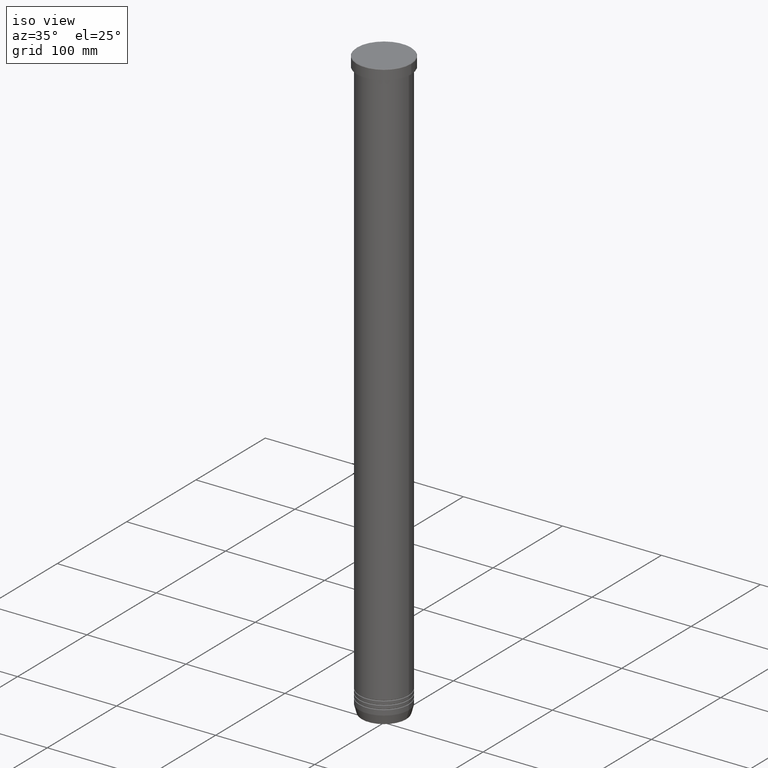
[diagram: clean part render]
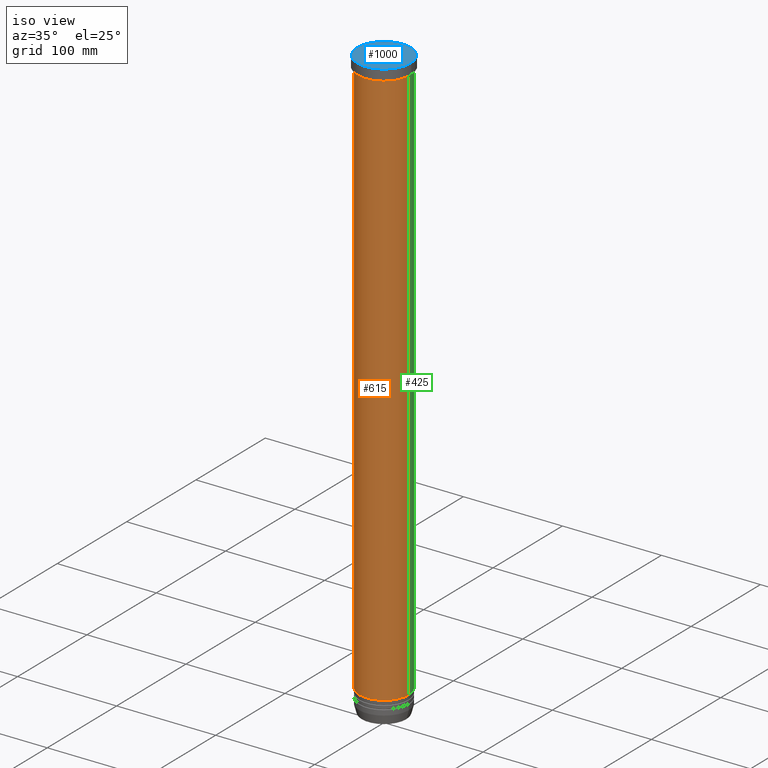
[diagram: same view with three faces highlighted in distinct colors, each labeled with its STEP entity id]
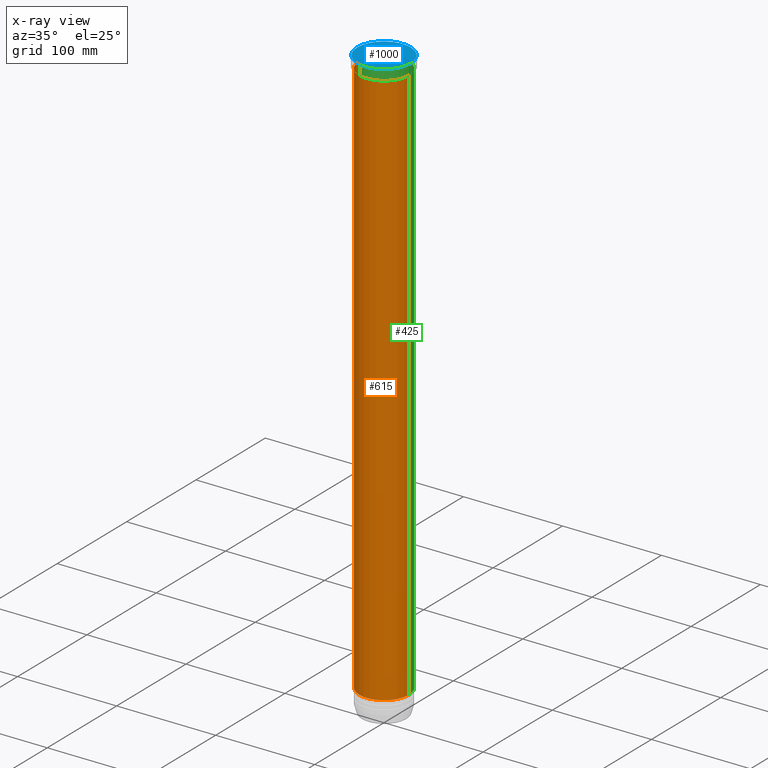
[diagram: x-ray of the same camera — body ghosted, the three highlighted faces saturated]
A machine part, iso view with three faces highlighted in distinct colors.
The next image is the same camera in x-ray (body ghosted, the three faces saturated) — at least one of them is partly hidden behind the body in this view.
Their STEP definitions:

[orange] entity #615 — the highlighted cylindrical surface (edge-blend (fillet) strip) has radius 25 mm, axis along (-0, -0, 1).
#9 = CARTESIAN_POINT ( 'NONE',  ( -25.00000000000000355, 3.061616997868383437E-15, -11.99999999999999822 ) ) ;
#17 = ORIENTED_EDGE ( 'NONE', *, *, #392, .F. ) ;
#19 = CARTESIAN_POINT ( 'NONE',  ( -24.99999999999999289, 3.061616997868382648E-15, -577.0000000000000000 ) ) ;
#45 = ORIENTED_EDGE ( 'NONE', *, *, #410, .F. ) ;
#50 = DIRECTION ( 'NONE',  ( 1.000000000000000000, 0.000000000000000000, 0.000000000000000000 ) ) ;
#89 = FACE_OUTER_BOUND ( 'NONE', #825, .T. ) ;
#105 = VERTEX_POINT ( 'NONE', #9 ) ;
#293 = CARTESIAN_POINT ( 'NONE',  ( 25.00000000000000000, 0.000000000000000000, -11.99999999999999822 ) ) ;
#300 = VERTEX_POINT ( 'NONE', #293 ) ;
#318 = CIRCLE ( 'NONE', #339, 24.99999999999999289 ) ;
#327 = ORIENTED_EDGE ( 'NONE', *, *, #808, .T. ) ;
#339 = AXIS2_PLACEMENT_3D ( 'NONE', #409, #820, #733 ) ;
#373 = CARTESIAN_POINT ( 'NONE',  ( 24.99999999999999645, 0.000000000000000000, 0.000000000000000000 ) ) ;
#392 = EDGE_CURVE ( 'NONE', #105, #300, #520, .T. ) ;
#398 = AXIS2_PLACEMENT_3D ( 'NONE', #411, #415, #741 ) ;
#409 = CARTESIAN_POINT ( 'NONE',  ( 0.000000000000000000, 0.000000000000000000, -577.0000000000000000 ) ) ;
#410 = EDGE_CURVE ( 'NONE', #518, #105, #626, .T. ) ;
#411 = CARTESIAN_POINT ( 'NONE',  ( 0.000000000000000000, 0.000000000000000000, 0.000000000000000000 ) ) ;
#413 = VECTOR ( 'NONE', #629, 1000.000000000000000 ) ;
#415 = DIRECTION ( 'NONE',  ( -0.000000000000000000, -0.000000000000000000, 1.000000000000000000 ) ) ;
#434 = VECTOR ( 'NONE', #1059, 1000.000000000000000 ) ;
#450 = ORIENTED_EDGE ( 'NONE', *, *, #1036, .T. ) ;
#518 = VERTEX_POINT ( 'NONE', #19 ) ;
#520 = CIRCLE ( 'NONE', #651, 25.00000000000000000 ) ;
#567 = CARTESIAN_POINT ( 'NONE',  ( -24.99999999999999645, 3.061616997868382648E-15, 0.000000000000000000 ) ) ;
#615 = ADVANCED_FACE ( 'NONE', ( #89 ), #904, .T. ) ;
#626 = LINE ( 'NONE', #567, #413 ) ;
#628 = LINE ( 'NONE', #373, #434 ) ;
#629 = DIRECTION ( 'NONE',  ( -0.000000000000000000, -0.000000000000000000, 1.000000000000000000 ) ) ;
#651 = AXIS2_PLACEMENT_3D ( 'NONE', #812, #1045, #50 ) ;
#733 = DIRECTION ( 'NONE',  ( 1.000000000000000000, 0.000000000000000000, 0.000000000000000000 ) ) ;
#741 = DIRECTION ( 'NONE',  ( 1.000000000000000000, 0.000000000000000000, 0.000000000000000000 ) ) ;
#743 = VERTEX_POINT ( 'NONE', #775 ) ;
#775 = CARTESIAN_POINT ( 'NONE',  ( 24.99999999999999289, 0.000000000000000000, -577.0000000000000000 ) ) ;
#808 = EDGE_CURVE ( 'NONE', #743, #300, #628, .T. ) ;
#812 = CARTESIAN_POINT ( 'NONE',  ( 0.000000000000000000, 0.000000000000000000, -11.99999999999999822 ) ) ;
#820 = DIRECTION ( 'NONE',  ( -0.000000000000000000, -0.000000000000000000, 1.000000000000000000 ) ) ;
#825 = EDGE_LOOP ( 'NONE', ( #45, #450, #327, #17 ) ) ;
#904 = CYLINDRICAL_SURFACE ( 'NONE', #398, 24.99999999999999645 ) ;
#1036 = EDGE_CURVE ( 'NONE', #518, #743, #318, .T. ) ;
#1045 = DIRECTION ( 'NONE',  ( -0.000000000000000000, -0.000000000000000000, 1.000000000000000000 ) ) ;
#1059 = DIRECTION ( 'NONE',  ( -0.000000000000000000, -0.000000000000000000, 1.000000000000000000 ) ) ;

[blue] entity #1000 — the highlighted planar face has unit normal (0, -0, 1).
#10 = DIRECTION ( 'NONE',  ( 1.000000000000000000, 0.000000000000000000, 0.000000000000000000 ) ) ;
#107 = DIRECTION ( 'NONE',  ( 1.000000000000000000, 0.000000000000000000, 0.000000000000000000 ) ) ;
#163 = PLANE ( 'NONE',  #399 ) ;
#180 = CIRCLE ( 'NONE', #620, 27.00000000000000711 ) ;
#246 = FACE_OUTER_BOUND ( 'NONE', #1030, .T. ) ;
#285 = DIRECTION ( 'NONE',  ( -0.000000000000000000, -0.000000000000000000, 1.000000000000000000 ) ) ;
#332 = DIRECTION ( 'NONE',  ( -0.000000000000000000, -0.000000000000000000, 1.000000000000000000 ) ) ;
#334 = VERTEX_POINT ( 'NONE', #604 ) ;
#338 = DIRECTION ( 'NONE',  ( 1.000000000000000000, 0.000000000000000000, 0.000000000000000000 ) ) ;
#379 = CIRCLE ( 'NONE', #590, 27.00000000000000711 ) ;
#389 = CARTESIAN_POINT ( 'NONE',  ( -27.00000000000000711, 0.000000000000000000, 0.000000000000000000 ) ) ;
#399 = AXIS2_PLACEMENT_3D ( 'NONE', #569, #487, #338 ) ;
#433 = CARTESIAN_POINT ( 'NONE',  ( 0.000000000000000000, 0.000000000000000000, 0.000000000000000000 ) ) ;
#463 = VERTEX_POINT ( 'NONE', #389 ) ;
#487 = DIRECTION ( 'NONE',  ( 0.000000000000000000, -0.000000000000000000, 1.000000000000000000 ) ) ;
#508 = EDGE_CURVE ( 'NONE', #463, #334, #379, .T. ) ;
#569 = CARTESIAN_POINT ( 'NONE',  ( 0.000000000000000000, 0.000000000000000000, 0.000000000000000000 ) ) ;
#590 = AXIS2_PLACEMENT_3D ( 'NONE', #594, #332, #10 ) ;
#594 = CARTESIAN_POINT ( 'NONE',  ( 0.000000000000000000, 0.000000000000000000, 0.000000000000000000 ) ) ;
#604 = CARTESIAN_POINT ( 'NONE',  ( 27.00000000000000711, 3.337162527676537915E-15, 0.000000000000000000 ) ) ;
#620 = AXIS2_PLACEMENT_3D ( 'NONE', #433, #285, #107 ) ;
#649 = EDGE_CURVE ( 'NONE', #334, #463, #180, .T. ) ;
#687 = ORIENTED_EDGE ( 'NONE', *, *, #649, .T. ) ;
#935 = ORIENTED_EDGE ( 'NONE', *, *, #508, .T. ) ;
#1000 = ADVANCED_FACE ( 'NONE', ( #246 ), #163, .T. ) ;
#1030 = EDGE_LOOP ( 'NONE', ( #935, #687 ) ) ;

[green] entity #425 — the highlighted cylindrical surface (edge-blend (fillet) strip) has radius 25 mm, axis along (-0, -0, 1).
#9 = CARTESIAN_POINT ( 'NONE',  ( -25.00000000000000355, 3.061616997868383437E-15, -11.99999999999999822 ) ) ;
#19 = CARTESIAN_POINT ( 'NONE',  ( -24.99999999999999289, 3.061616997868382648E-15, -577.0000000000000000 ) ) ;
#64 = CARTESIAN_POINT ( 'NONE',  ( 0.000000000000000000, 0.000000000000000000, -11.99999999999999822 ) ) ;
#105 = VERTEX_POINT ( 'NONE', #9 ) ;
#178 = ORIENTED_EDGE ( 'NONE', *, *, #872, .T. ) ;
#218 = CARTESIAN_POINT ( 'NONE',  ( 0.000000000000000000, 0.000000000000000000, -577.0000000000000000 ) ) ;
#224 = FACE_OUTER_BOUND ( 'NONE', #405, .T. ) ;
#230 = DIRECTION ( 'NONE',  ( 1.000000000000000000, 0.000000000000000000, 0.000000000000000000 ) ) ;
#235 = AXIS2_PLACEMENT_3D ( 'NONE', #782, #883, #230 ) ;
#238 = CYLINDRICAL_SURFACE ( 'NONE', #235, 24.99999999999999645 ) ;
#293 = CARTESIAN_POINT ( 'NONE',  ( 25.00000000000000000, 0.000000000000000000, -11.99999999999999822 ) ) ;
#296 = CIRCLE ( 'NONE', #900, 24.99999999999999289 ) ;
#300 = VERTEX_POINT ( 'NONE', #293 ) ;
#373 = CARTESIAN_POINT ( 'NONE',  ( 24.99999999999999645, 0.000000000000000000, 0.000000000000000000 ) ) ;
#405 = EDGE_LOOP ( 'NONE', ( #178, #992, #697, #1008 ) ) ;
#410 = EDGE_CURVE ( 'NONE', #518, #105, #626, .T. ) ;
#413 = VECTOR ( 'NONE', #629, 1000.000000000000000 ) ;
#425 = ADVANCED_FACE ( 'NONE', ( #224 ), #238, .T. ) ;
#434 = VECTOR ( 'NONE', #1059, 1000.000000000000000 ) ;
#441 = EDGE_CURVE ( 'NONE', #300, #105, #880, .T. ) ;
#471 = DIRECTION ( 'NONE',  ( 1.000000000000000000, 0.000000000000000000, 0.000000000000000000 ) ) ;
#518 = VERTEX_POINT ( 'NONE', #19 ) ;
#553 = DIRECTION ( 'NONE',  ( 1.000000000000000000, 0.000000000000000000, 0.000000000000000000 ) ) ;
#567 = CARTESIAN_POINT ( 'NONE',  ( -24.99999999999999645, 3.061616997868382648E-15, 0.000000000000000000 ) ) ;
#573 = AXIS2_PLACEMENT_3D ( 'NONE', #64, #960, #471 ) ;
#626 = LINE ( 'NONE', #567, #413 ) ;
#628 = LINE ( 'NONE', #373, #434 ) ;
#629 = DIRECTION ( 'NONE',  ( -0.000000000000000000, -0.000000000000000000, 1.000000000000000000 ) ) ;
#697 = ORIENTED_EDGE ( 'NONE', *, *, #441, .F. ) ;
#718 = DIRECTION ( 'NONE',  ( -0.000000000000000000, -0.000000000000000000, 1.000000000000000000 ) ) ;
#743 = VERTEX_POINT ( 'NONE', #775 ) ;
#775 = CARTESIAN_POINT ( 'NONE',  ( 24.99999999999999289, 0.000000000000000000, -577.0000000000000000 ) ) ;
#782 = CARTESIAN_POINT ( 'NONE',  ( 0.000000000000000000, 0.000000000000000000, 0.000000000000000000 ) ) ;
#808 = EDGE_CURVE ( 'NONE', #743, #300, #628, .T. ) ;
#872 = EDGE_CURVE ( 'NONE', #743, #518, #296, .T. ) ;
#880 = CIRCLE ( 'NONE', #573, 25.00000000000000000 ) ;
#883 = DIRECTION ( 'NONE',  ( -0.000000000000000000, -0.000000000000000000, 1.000000000000000000 ) ) ;
#900 = AXIS2_PLACEMENT_3D ( 'NONE', #218, #718, #553 ) ;
#960 = DIRECTION ( 'NONE',  ( -0.000000000000000000, -0.000000000000000000, 1.000000000000000000 ) ) ;
#992 = ORIENTED_EDGE ( 'NONE', *, *, #410, .T. ) ;
#1008 = ORIENTED_EDGE ( 'NONE', *, *, #808, .F. ) ;
#1059 = DIRECTION ( 'NONE',  ( -0.000000000000000000, -0.000000000000000000, 1.000000000000000000 ) ) ;